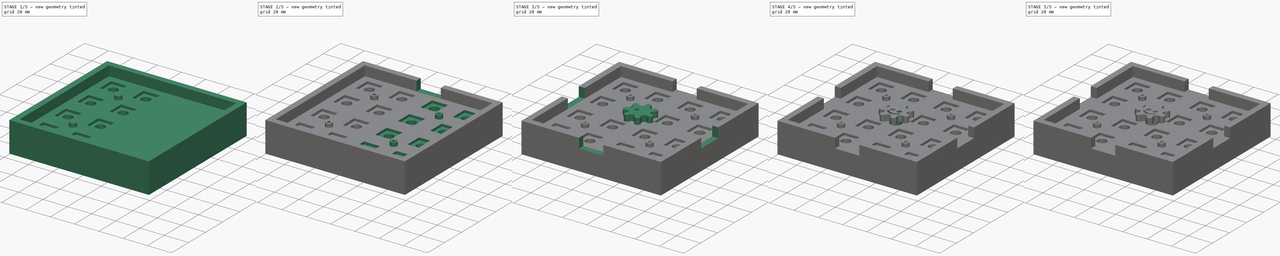
[diagram: build sequence overview — one tinted view per stage of 5, left to right]
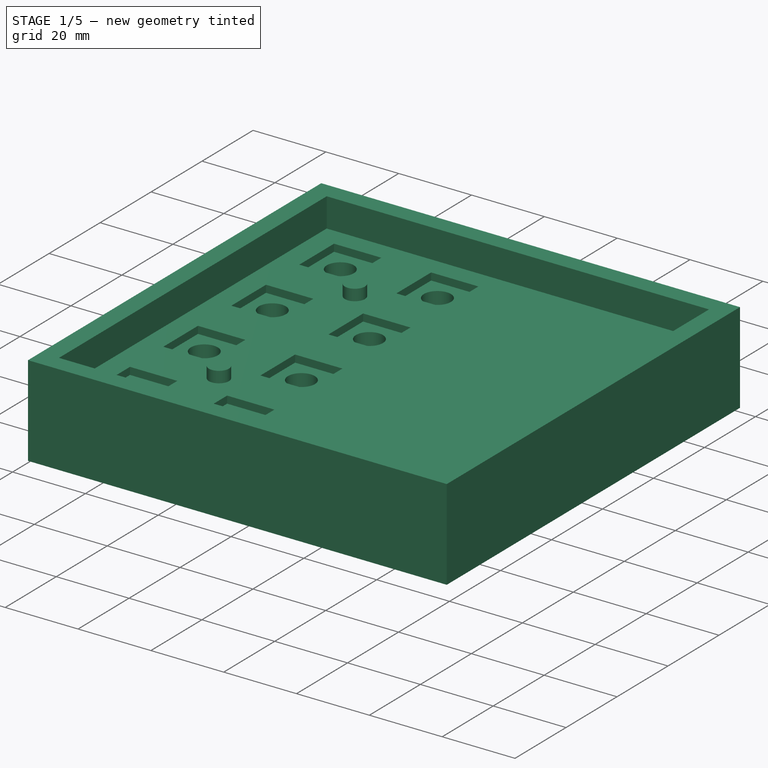
[diagram: stage 1 of 5 — iso view after this stage's code; geometry added in this stage tinted green]
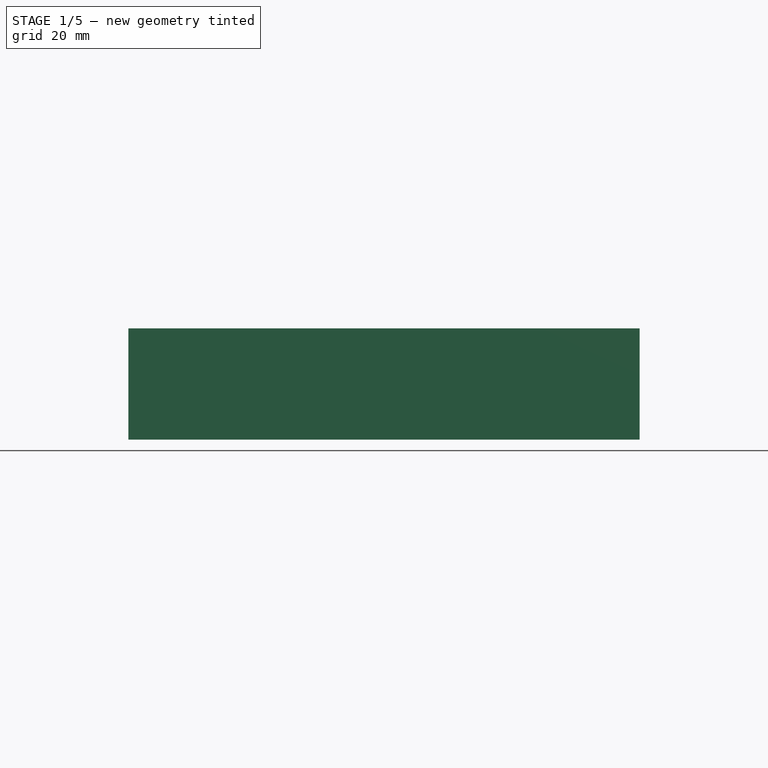
[diagram: stage 1 of 5 — front view after this stage's code; geometry added in this stage tinted green]
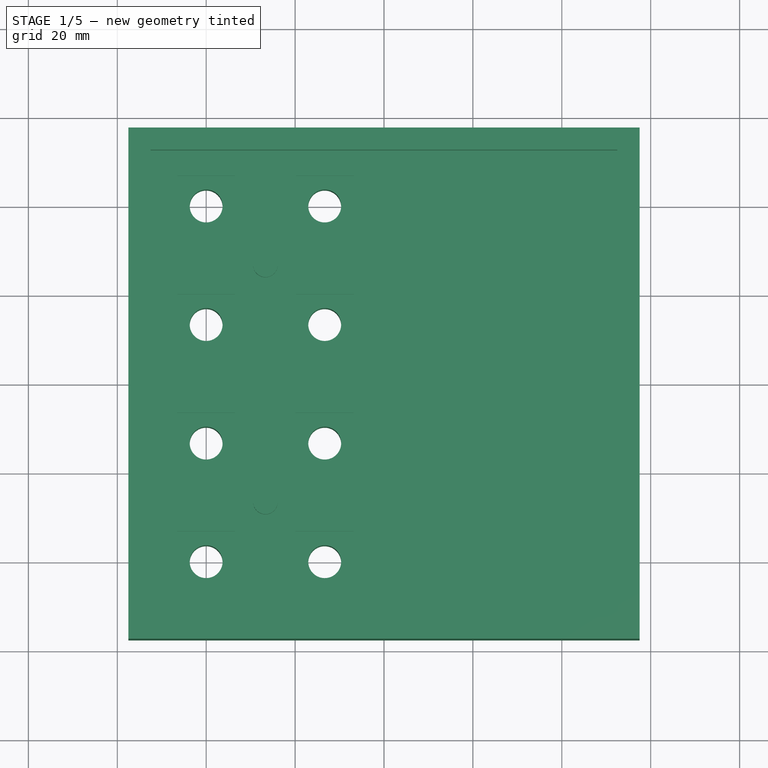
[diagram: stage 1 of 5 — top view after this stage's code; geometry added in this stage tinted green]
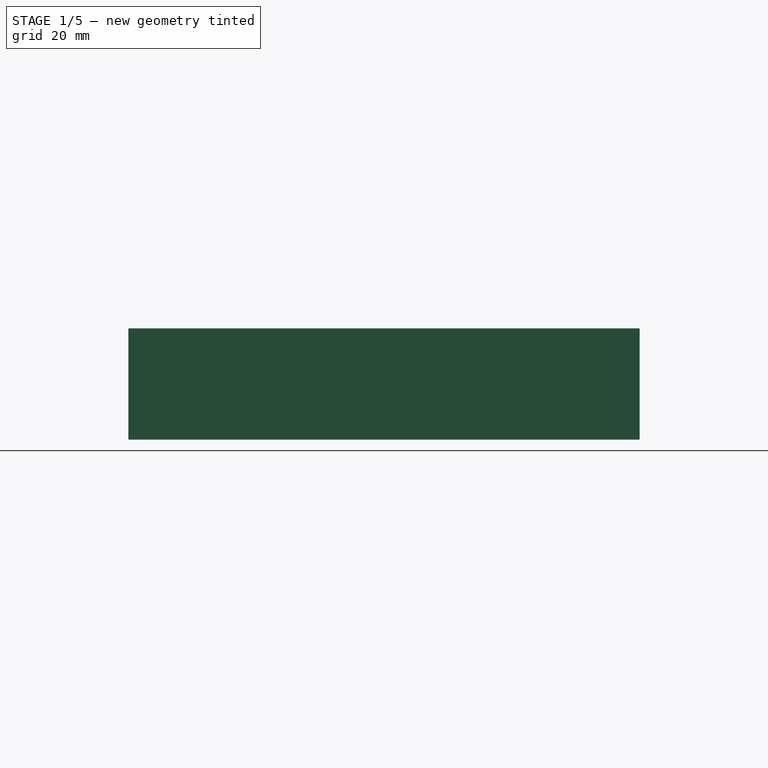
[diagram: stage 1 of 5 — right view after this stage's code; geometry added in this stage tinted green]
FCSTD DOCUMENT  (FreeCAD 0.21R33668 +26 (Git))
Label: EN16_solder_jig
License: All rights reserved
LicenseURL: https://en.wikipedia.org/wiki/All_rights_reserved
objects: Sketcher::SketchObject×16, PartDesign::Pocket×10, PartDesign::Pad×5, PartDesign::Mirrored×5, PartDesign::Plane×3, PartDesign::Body×3, PartDesign::Hole×1, PartDesign::Chamfer×1, PartDesign::PolarPattern×1
note: 62 computed .brp shape members not serialized (recipe doc carries the construction recipe); baked Part::Feature solids carry a one-line shape summary decoded from their .brp

FEATURE [Sketcher::SketchObject] Sketch
  FullyConstrained = true
  MapMode = 5
  Support = -> [XY_Plane]
  sketch-geometry (48):
    g0: LineSegment StartX=-46.51 StartY=46.81 StartZ=0 EndX=-46.51 EndY=33.21 EndZ=0
    g1: LineSegment StartX=-46.51 StartY=33.21 StartZ=0 EndX=-33.51 EndY=33.21 EndZ=0
    g2: LineSegment StartX=-33.51 StartY=33.21 StartZ=0 EndX=-33.51 EndY=46.81 EndZ=0
    g3: LineSegment StartX=-33.51 StartY=46.81 StartZ=0 EndX=-46.51 EndY=46.81 EndZ=0
    g4: GeomPoint X=-40.01 Y=40.01 Z=0
    g5: LineSegment StartX=-19.84 StartY=46.81 StartZ=0 EndX=-19.84 EndY=33.21 EndZ=0
    g6: LineSegment StartX=-19.84 StartY=33.21 StartZ=0 EndX=-6.84 EndY=33.21 EndZ=0
    g7: LineSegment StartX=-6.84 StartY=33.21 StartZ=0 EndX=-6.84 EndY=46.81 EndZ=0
    g8: LineSegment StartX=-6.84 StartY=46.81 StartZ=0 EndX=-19.84 EndY=46.81 EndZ=0
    g9: GeomPoint X=-13.34 Y=40.01 Z=0
    g10: LineSegment StartX=-46.51 StartY=20.14 StartZ=0 EndX=-46.51 EndY=6.54 EndZ=0
    g11: LineSegment StartX=-46.51 StartY=6.54 StartZ=0 EndX=-33.51 EndY=6.54 EndZ=0
    g12: LineSegment StartX=-33.51 StartY=6.54 StartZ=0 EndX=-33.51 EndY=20.14 EndZ=0
    g13: LineSegment StartX=-33.51 StartY=20.14 StartZ=0 EndX=-46.51 EndY=20.14 EndZ=0
    g14: GeomPoint X=-40.01 Y=13.34 Z=0
    g15: LineSegment StartX=-19.84 StartY=20.14 StartZ=0 EndX=-19.84 EndY=6.54 EndZ=0
    g16: LineSegment StartX=-19.84 StartY=6.54 StartZ=0 EndX=-6.84 EndY=6.54 EndZ=0
    g17: LineSegment StartX=-6.84 StartY=6.54 StartZ=0 EndX=-6.84 EndY=20.14 EndZ=0
    g18: LineSegment StartX=-6.84 StartY=20.14 StartZ=0 EndX=-19.84 EndY=20.14 EndZ=0
    g19: GeomPoint X=-13.34 Y=13.34 Z=0
    g20: LineSegment StartX=-46.51 StartY=-46.81 StartZ=0 EndX=-46.51 EndY=-33.21 EndZ=0
    g21: LineSegment StartX=-46.51 StartY=-33.21 StartZ=0 EndX=-33.51 EndY=-33.21 EndZ=0
    g22: LineSegment StartX=-33.51 StartY=-33.21 StartZ=0 EndX=-33.51 EndY=-46.81 EndZ=0
    g23: LineSegment StartX=-33.51 StartY=-46.81 StartZ=0 EndX=-46.51 EndY=-46.81 EndZ=0
    g24: GeomPoint X=-40.01 Y=-40.01 Z=0
    g25: LineSegment StartX=-19.84 StartY=-46.81 StartZ=0 EndX=-19.84 EndY=-33.21 EndZ=0
    g26: LineSegment StartX=-19.84 StartY=-33.21 StartZ=0 EndX=-6.84 EndY=-33.21 EndZ=0
    g27: LineSegment StartX=-6.84 StartY=-33.21 StartZ=0 EndX=-6.84 EndY=-46.81 EndZ=0
    g28: LineSegment StartX=-6.84 StartY=-46.81 StartZ=0 EndX=-19.84 EndY=-46.81 EndZ=0
    g29: GeomPoint X=-13.34 Y=-40.01 Z=0
    g30: LineSegment StartX=-46.51 StartY=-20.14 StartZ=0 EndX=-46.51 EndY=-6.54 EndZ=0
    g31: LineSegment StartX=-46.51 StartY=-6.54 StartZ=0 EndX=-33.51 EndY=-6.54 EndZ=0
    g32: LineSegment StartX=-33.51 StartY=-6.54 StartZ=0 EndX=-33.51 EndY=-20.14 EndZ=0
    g33: LineSegment StartX=-33.51 StartY=-20.14 StartZ=0 EndX=-46.51 EndY=-20.14 EndZ=0
    g34: GeomPoint X=-40.01 Y=-13.34 Z=0
    g35: LineSegment StartX=-19.84 StartY=-20.14 StartZ=0 EndX=-19.84 EndY=-6.54 EndZ=0
    g36: LineSegment StartX=-19.84 StartY=-6.54 StartZ=0 EndX=-6.84 EndY=-6.54 EndZ=0
    g37: LineSegment StartX=-6.84 StartY=-6.54 StartZ=0 EndX=-6.84 EndY=-20.14 EndZ=0
    g38: LineSegment StartX=-6.84 StartY=-20.14 StartZ=0 EndX=-19.84 EndY=-20.14 EndZ=0
    g39: GeomPoint X=-13.34 Y=-13.34 Z=0
    g40: LineSegment StartX=-40.01 StartY=40.01 StartZ=0 EndX=-13.34 EndY=40.01 EndZ=0
    g41: LineSegment StartX=-13.34 StartY=40.01 StartZ=0 EndX=-13.34 EndY=13.34 EndZ=0
    g42: LineSegment StartX=-13.34 StartY=13.34 StartZ=0 EndX=-13.34 EndY=0 EndZ=0
    g43: LineSegment StartX=-13.34 StartY=0 StartZ=0 EndX=-13.34 EndY=-13.34 EndZ=0
    g44: LineSegment StartX=-13.34 StartY=-13.34 StartZ=0 EndX=-13.34 EndY=-40.01 EndZ=0
    g45: LineSegment StartX=-13.34 StartY=-13.34 StartZ=0 EndX=-40.01 EndY=-13.34 EndZ=0
    g46: LineSegment StartX=-13.34 StartY=13.34 StartZ=0 EndX=0 EndY=13.34 EndZ=0
    g47: LineSegment StartX=-13.34 StartY=-13.34 StartZ=0 EndX=0 EndY=-13.34 EndZ=0
  constraints (123):
    c: Coincident(g0,g1)
    c: Coincident(g1,g2)
    c: Coincident(g2,g3)
    c: Coincident(g3,g0)
    c: Horizontal(g1)
    c: Horizontal(g3)
    c: Vertical(g0)
    c: Vertical(g2)
    c: Symmetric(g1,g0,g4)
    c: Coincident(g5,g6)
    c: Coincident(g6,g7)
    c: Coincident(g7,g8)
    c: Coincident(g8,g5)
    c: Horizontal(g6)
    c: Horizontal(g8)
    c: Vertical(g5)
    c: Vertical(g7)
    c: Symmetric(g6,g5,g9)
    c: Coincident(g10,g11)
    c: Coincident(g11,g12)
    c: Coincident(g12,g13)
    c: Coincident(g13,g10)
    c: Horizontal(g11)
    c: Horizontal(g13)
    c: Vertical(g10)
    c: Vertical(g12)
    c: Symmetric(g11,g10,g14)
    c: Coincident(g15,g16)
    c: Coincident(g16,g17)
    c: Coincident(g17,g18)
    c: Coincident(g18,g15)
    c: Horizontal(g16)
    c: Horizontal(g18)
    c: Vertical(g15)
    c: Vertical(g17)
    c: Symmetric(g16,g15,g19)
    c: Horizontal(g19,g14)
    c: Horizontal(g9,g4)
    c: Vertical(g9,g19)
    c: Vertical(g4,g14)
    c: Equal(g2,g7)
    c: Equal(g7,g17)
    c: Equal(g17,g12)
    c: Equal(g1,g13)
    c: Equal(g13,g6)
    c: Equal(g6,g18)
    c: DistanceX(g8,g8) = 13
    c: Coincident(g20,g21)
    c: Coincident(g21,g22)
    c: Coincident(g22,g23)
    c: Coincident(g23,g20)
    c: Horizontal(g21)
    c: Horizontal(g23)
    c: Vertical(g20)
    c: Vertical(g22)
    c: Symmetric(g21,g20,g24)
    c: Coincident(g25,g26)
    c: Coincident(g26,g27)
    c: Coincident(g27,g28)
    c: Coincident(g28,g25)
    c: Horizontal(g26)
    c: Horizontal(g28)
    c: Vertical(g25)
    c: Vertical(g27)
    c: Symmetric(g26,g25,g29)
    c: Coincident(g30,g31)
    c: Coincident(g31,g32)
    c: Coincident(g32,g33)
    c: Coincident(g33,g30)
    c: Horizontal(g31)
    c: Horizontal(g33)
    c: Vertical(g30)
    c: Vertical(g32)
    c: Symmetric(g31,g30,g34)
    c: Coincident(g35,g36)
    c: Coincident(g36,g37)
    c: Coincident(g37,g38)
    c: Coincident(g38,g35)
    c: Horizontal(g36)
    c: Horizontal(g38)
    c: Vertical(g35)
    c: Vertical(g37)
    c: Symmetric(g36,g35,g39)
    c: Equal(g22,g27)
    c: Equal(g27,g37)
    c: Equal(g37,g32)
    c: Equal(g21,g33)
    c: Equal(g33,g26)
    c: Equal(g26,g38)
    c: DistanceY(g7,g7) = 13.6
    c: Coincident(g40,g4)
    c: Coincident(g40,g9)
    c: Coincident(g41,g40)
    c: Coincident(g41,g19)
    c: Coincident(g42,g41)
    c: PointOnObject(g42,g-1)
    c: Vertical(g42)
    c: Coincident(g43,g42)
    c: Coincident(g43,g39)
    c: Vertical(g43)
    c: Coincident(g44,g43)
    c: Coincident(g44,g29)
    c: Vertical(g44)
    c: Coincident(g45,g43)
    c: Coincident(g45,g34)
    c: Horizontal(g45)
    c: DistanceY(g41,g41) = 26.67
    c: DistanceX(g40,g40) = 26.67
    c: DistanceY(g42,g42) = 13.34
    c: Coincident(g46,g41)
    c: PointOnObject(g46,g-2)
    c: Horizontal(g46)
    c: DistanceX(g46,g46) = 13.34
    c: Coincident(g47,g43)
    c: PointOnObject(g47,g-2)
    c: Horizontal(g47)
    c: Equal(g42,g43)
    c: Equal(g41,g44)
    c: Equal(g45,g40)
    c: Equal(g32,g12)
    c: Equal(g31,g11)
    c: Horizontal(g24,g44)
    c: Vertical(g24,g45)
FEATURE [Sketcher::SketchObject] Sketch001
  FullyConstrained = true
  MapMode = 5
  Support = -> [XY_Plane]
  sketch-geometry (5):
    g0: LineSegment StartX=-57.5 StartY=57.5 StartZ=0 EndX=-57.5 EndY=-57.5 EndZ=0
    g1: LineSegment StartX=-57.5 StartY=-57.5 StartZ=0 EndX=57.5 EndY=-57.5 EndZ=0
    g2: LineSegment StartX=57.5 StartY=-57.5 StartZ=0 EndX=57.5 EndY=57.5 EndZ=0
    g3: LineSegment StartX=57.5 StartY=57.5 StartZ=0 EndX=-57.5 EndY=57.5 EndZ=0
    g4: GeomPoint X=0 Y=0 Z=0
  constraints (12):
    c: Coincident(g0,g1)
    c: Coincident(g1,g2)
    c: Coincident(g2,g3)
    c: Coincident(g3,g0)
    c: Horizontal(g1)
    c: Horizontal(g3)
    c: Vertical(g0)
    c: Vertical(g2)
    c: Symmetric(g1,g0,g4)
    c: Coincident(g4,g-1)
    c: DistanceY(g2,g2) = 115
    c: Equal(g3,g2)
FEATURE [PartDesign::Pad] Pad
  Direction = (0,0,1)
  Length = 10
  Length2 = 15
  Midplane = true
  Profile = -> Sketch001
  ReferenceAxis = -> Sketch001 [N_Axis]
  Type = 4
FEATURE [PartDesign::Plane] DatumPlane
  AttachmentOffset = pos=(0,0,2) rot=(0,0,1;0rad)
  Length = 138
  MapMode = 5
  Placement = pos=(0,0,2) rot=(0,0,1;0rad)
  ResizeMode = 0
  Support = -> [XY_Plane]
  Width = 138
FEATURE [Sketcher::SketchObject] Sketch002
  FullyConstrained = true
  MapMode = 5
  Placement = pos=(0,0,2) rot=(0,0,1;0rad)
  Support = -> [DatumPlane]
  sketch-geometry (5):
    g0: LineSegment StartX=-52.5 StartY=-52.5 StartZ=0 EndX=-52.5 EndY=52.5 EndZ=0
    g1: LineSegment StartX=-52.5 StartY=52.5 StartZ=0 EndX=52.5 EndY=52.5 EndZ=0
    g2: LineSegment StartX=52.5 StartY=52.5 StartZ=0 EndX=52.5 EndY=-52.5 EndZ=0
    g3: LineSegment StartX=52.5 StartY=-52.5 StartZ=0 EndX=-52.5 EndY=-52.5 EndZ=0
    g4: GeomPoint X=0 Y=0 Z=0
  constraints (12):
    c: Coincident(g0,g1)
    c: Coincident(g1,g2)
    c: Coincident(g2,g3)
    c: Coincident(g3,g0)
    c: Horizontal(g1)
    c: Horizontal(g3)
    c: Vertical(g0)
    c: Vertical(g2)
    c: Symmetric(g1,g0,g4)
    c: Coincident(g4,g-1)
    c: DistanceX(g1,g1) = 105
    c: Equal(g1,g2)
FEATURE [PartDesign::Pocket] Pocket
  BaseFeature = -> Pad
  Direction = (0,0,-1)
  Length = 5
  Length2 = 5
  Profile = -> Sketch002
  ReferenceAxis = -> Sketch002 [N_Axis]
  Reversed = true
  Type = 1
FEATURE [PartDesign::Pocket] Pocket001
  BaseFeature = -> Pocket
  Direction = (0,0,-1)
  Length = 2.5
  Length2 = 5
  Profile = -> Sketch
  ReferenceAxis = -> Sketch [N_Axis]
  Reversed = true
  Type = 0
FEATURE [Sketcher::SketchObject] Sketch003
  FullyConstrained = true
  MapMode = 5
  Placement = pos=(0,0,2) rot=(0,0,1;0rad)
  Support = -> [DatumPlane]
  sketch-geometry (56):
    g0: LineSegment StartX=-46.31 StartY=46.61 StartZ=0 EndX=-46.31 EndY=33.41 EndZ=0
    g1: LineSegment StartX=-46.31 StartY=33.41 StartZ=0 EndX=-33.71 EndY=33.41 EndZ=0
    g2: LineSegment StartX=-33.71 StartY=33.41 StartZ=0 EndX=-33.71 EndY=46.61 EndZ=0
    g3: LineSegment StartX=-33.71 StartY=46.61 StartZ=0 EndX=-46.31 EndY=46.61 EndZ=0
    g4: GeomPoint X=-40.01 Y=40.01 Z=0
    g5: LineSegment StartX=-19.64 StartY=46.61 StartZ=0 EndX=-19.64 EndY=33.41 EndZ=0
    g6: LineSegment StartX=-19.64 StartY=33.41 StartZ=0 EndX=-7.04 EndY=33.41 EndZ=0
    g7: LineSegment StartX=-7.04 StartY=33.41 StartZ=0 EndX=-7.04 EndY=46.61 EndZ=0
    g8: LineSegment StartX=-7.04 StartY=46.61 StartZ=0 EndX=-19.64 EndY=46.61 EndZ=0
    g9: GeomPoint X=-13.34 Y=40.01 Z=0
    g10: LineSegment StartX=-46.31 StartY=19.94 StartZ=0 EndX=-46.31 EndY=6.74 EndZ=0
    g11: LineSegment StartX=-46.31 StartY=6.74 StartZ=0 EndX=-33.71 EndY=6.74 EndZ=0
    g12: LineSegment StartX=-33.71 StartY=6.74 StartZ=0 EndX=-33.71 EndY=19.94 EndZ=0
    g13: LineSegment StartX=-33.71 StartY=19.94 StartZ=0 EndX=-46.31 EndY=19.94 EndZ=0
    g14: GeomPoint X=-40.01 Y=13.34 Z=0
    g15: LineSegment StartX=-19.64 StartY=19.94 StartZ=0 EndX=-19.64 EndY=6.74 EndZ=0
    g16: LineSegment StartX=-19.64 StartY=6.74 StartZ=0 EndX=-7.04 EndY=6.74 EndZ=0
    g17: LineSegment StartX=-7.04 StartY=6.74 StartZ=0 EndX=-7.04 EndY=19.94 EndZ=0
    g18: LineSegment StartX=-7.04 StartY=19.94 StartZ=0 EndX=-19.64 EndY=19.94 EndZ=0
    g19: GeomPoint X=-13.34 Y=13.34 Z=0
    g20: LineSegment StartX=-46.31 StartY=-46.61 StartZ=0 EndX=-46.31 EndY=-33.41 EndZ=0
    g21: LineSegment StartX=-46.31 StartY=-33.41 StartZ=0 EndX=-33.71 EndY=-33.41 EndZ=0
    g22: LineSegment StartX=-33.71 StartY=-33.41 StartZ=0 EndX=-33.71 EndY=-46.61 EndZ=0
    g23: LineSegment StartX=-33.71 StartY=-46.61 StartZ=0 EndX=-46.31 EndY=-46.61 EndZ=0
    g24: GeomPoint X=-40.01 Y=-40.01 Z=0
    g25: LineSegment StartX=-19.64 StartY=-46.61 StartZ=0 EndX=-19.64 EndY=-33.41 EndZ=0
    g26: LineSegment StartX=-19.64 StartY=-33.41 StartZ=0 EndX=-7.04 EndY=-33.41 EndZ=0
    g27: LineSegment StartX=-7.04 StartY=-33.41 StartZ=0 EndX=-7.04 EndY=-46.61 EndZ=0
    g28: LineSegment StartX=-7.04 StartY=-46.61 StartZ=0 EndX=-19.64 EndY=-46.61 EndZ=0
    g29: GeomPoint X=-13.34 Y=-40.01 Z=0
    g30: LineSegment StartX=-46.31 StartY=-19.94 StartZ=0 EndX=-46.31 EndY=-6.74 EndZ=0
    g31: LineSegment StartX=-46.31 StartY=-6.74 StartZ=0 EndX=-33.71 EndY=-6.74 EndZ=0
    g32: LineSegment StartX=-33.71 StartY=-6.74 StartZ=0 EndX=-33.71 EndY=-19.94 EndZ=0
    g33: LineSegment StartX=-33.71 StartY=-19.94 StartZ=0 EndX=-46.31 EndY=-19.94 EndZ=0
    g34: GeomPoint X=-40.01 Y=-13.34 Z=0
    g35: LineSegment StartX=-19.64 StartY=-19.94 StartZ=0 EndX=-19.64 EndY=-6.74 EndZ=0
    g36: LineSegment StartX=-19.64 StartY=-6.74 StartZ=0 EndX=-7.04 EndY=-6.74 EndZ=0
    g37: LineSegment StartX=-7.04 StartY=-6.74 StartZ=0 EndX=-7.04 EndY=-19.94 EndZ=0
    g38: LineSegment StartX=-7.04 StartY=-19.94 StartZ=0 EndX=-19.64 EndY=-19.94 EndZ=0
    g39: GeomPoint X=-13.34 Y=-13.34 Z=0
    g40: LineSegment StartX=-40.01 StartY=40.01 StartZ=0 EndX=-13.34 EndY=40.01 EndZ=0
    g41: LineSegment StartX=-13.34 StartY=40.01 StartZ=0 EndX=-13.34 EndY=13.34 EndZ=0
    g42: LineSegment StartX=-13.34 StartY=13.34 StartZ=0 EndX=-13.34 EndY=0 EndZ=0
    g43: LineSegment StartX=-13.34 StartY=0 StartZ=0 EndX=-13.34 EndY=-13.34 EndZ=0
    g44: LineSegment StartX=-13.34 StartY=-13.34 StartZ=0 EndX=-13.34 EndY=-40.01 EndZ=0
    g45: LineSegment StartX=-13.34 StartY=-13.34 StartZ=0 EndX=-40.01 EndY=-13.34 EndZ=0
    g46: LineSegment StartX=-13.34 StartY=13.34 StartZ=0 EndX=0 EndY=13.34 EndZ=0
    g47: LineSegment StartX=-13.34 StartY=-13.34 StartZ=0 EndX=0 EndY=-13.34 EndZ=0
    g48: Circle CenterX=-40.01 CenterY=40.01 CenterZ=0 NormalX=0 NormalY=0 NormalZ=1 AngleXU=0 Radius=3.7
    g49: Circle CenterX=-40.01 CenterY=13.34 CenterZ=0 NormalX=0 NormalY=0 NormalZ=1 AngleXU=0 Radius=3.7
    g50: Circle CenterX=-40.01 CenterY=-13.34 CenterZ=0 NormalX=0 NormalY=0 NormalZ=1 AngleXU=0 Radius=3.7
    g51: Circle CenterX=-13.34 CenterY=-13.34 CenterZ=0 NormalX=0 NormalY=0 NormalZ=1 AngleXU=0 Radius=3.7
    g52: Circle CenterX=-13.34 CenterY=-40.01 CenterZ=0 NormalX=0 NormalY=0 NormalZ=1 AngleXU=0 Radius=3.7
    g53: Circle CenterX=-40.01 CenterY=-40.01 CenterZ=0 NormalX=0 NormalY=0 NormalZ=1 AngleXU=0 Radius=3.7
    g54: Circle CenterX=-13.34 CenterY=13.34 CenterZ=0 NormalX=0 NormalY=0 NormalZ=1 AngleXU=0 Radius=3.7
    g55: Circle CenterX=-13.34 CenterY=40.01 CenterZ=0 NormalX=0 NormalY=0 NormalZ=1 AngleXU=0 Radius=3.7
  constraints (139):
    c: Coincident(g0,g1)
    c: Coincident(g1,g2)
    c: Coincident(g2,g3)
    c: Coincident(g3,g0)
    c: Horizontal(g1)
    c: Horizontal(g3)
    c: Vertical(g0)
    c: Vertical(g2)
    c: Symmetric(g1,g0,g4)
    c: Coincident(g5,g6)
    c: Coincident(g6,g7)
    c: Coincident(g7,g8)
    c: Coincident(g8,g5)
    c: Horizontal(g6)
    c: Horizontal(g8)
    c: Vertical(g5)
    c: Vertical(g7)
    c: Symmetric(g6,g5,g9)
    c: Coincident(g10,g11)
    c: Coincident(g11,g12)
    c: Coincident(g12,g13)
    c: Coincident(g13,g10)
    c: Horizontal(g11)
    c: Horizontal(g13)
    c: Vertical(g10)
    c: Vertical(g12)
    c: Symmetric(g11,g10,g14)
    c: Coincident(g15,g16)
    c: Coincident(g16,g17)
    c: Coincident(g17,g18)
    c: Coincident(g18,g15)
    c: Horizontal(g16)
    c: Horizontal(g18)
    c: Vertical(g15)
    c: Vertical(g17)
    c: Symmetric(g16,g15,g19)
    c: Horizontal(g19,g14)
    c: Horizontal(g9,g4)
    c: Vertical(g9,g19)
    c: Vertical(g4,g14)
    c: Equal(g2,g7)
    c: Equal(g7,g17)
    c: Equal(g17,g12)
    c: Equal(g1,g13)
    c: Equal(g13,g6)
    c: Equal(g6,g18)
    c: DistanceX(g8,g8) = 12.6
    c: Coincident(g20,g21)
    c: Coincident(g21,g22)
    c: Coincident(g22,g23)
    c: Coincident(g23,g20)
    c: Horizontal(g21)
    c: Horizontal(g23)
    c: Vertical(g20)
    c: Vertical(g22)
    c: Symmetric(g21,g20,g24)
    c: Coincident(g25,g26)
    c: Coincident(g26,g27)
    c: Coincident(g27,g28)
    c: Coincident(g28,g25)
    c: Horizontal(g26)
    c: Horizontal(g28)
    c: Vertical(g25)
    c: Vertical(g27)
    c: Symmetric(g26,g25,g29)
    c: Coincident(g30,g31)
    c: Coincident(g31,g32)
    c: Coincident(g32,g33)
    c: Coincident(g33,g30)
    c: Horizontal(g31)
    c: Horizontal(g33)
    c: Vertical(g30)
    c: Vertical(g32)
    c: Symmetric(g31,g30,g34)
    c: Coincident(g35,g36)
    c: Coincident(g36,g37)
    c: Coincident(g37,g38)
    c: Coincident(g38,g35)
    c: Horizontal(g36)
    c: Horizontal(g38)
    c: Vertical(g35)
    c: Vertical(g37)
    c: Symmetric(g36,g35,g39)
    c: Equal(g22,g27)
    c: Equal(g27,g37)
    c: Equal(g37,g32)
    c: Equal(g21,g33)
    c: Equal(g33,g26)
    c: Equal(g26,g38)
    c: DistanceY(g7,g7) = 13.2
    c: Coincident(g40,g4)
    c: Coincident(g40,g9)
    c: Coincident(g41,g40)
    c: Coincident(g41,g19)
    c: Coincident(g42,g41)
    c: PointOnObject(g42,g-1)
    c: Vertical(g42)
    c: Coincident(g43,g42)
    c: Coincident(g43,g39)
    c: Vertical(g43)
    c: Coincident(g44,g43)
    c: Coincident(g44,g29)
    c: Vertical(g44)
    c: Coincident(g45,g43)
    c: Coincident(g45,g34)
    c: Horizontal(g45)
    c: DistanceY(g41,g41) = 26.67
    c: DistanceX(g40,g40) = 26.67
    c: DistanceY(g42,g42) = 13.34
    c: Coincident(g46,g41)
    c: PointOnObject(g46,g-2)
    c: Horizontal(g46)
    c: DistanceX(g46,g46) = 13.34
    c: Coincident(g47,g43)
    c: PointOnObject(g47,g-2)
    c: Horizontal(g47)
    c: Equal(g42,g43)
    c: Equal(g41,g44)
    c: Equal(g45,g40)
    c: Equal(g32,g12)
    c: Equal(g31,g11)
    c: Horizontal(g24,g44)
    c: Vertical(g24,g45)
    c: Coincident(g48,g4)
    c: Coincident(g49,g14)
    c: Coincident(g50,g34)
    c: Coincident(g51,g39)
    c: Coincident(g52,g29)
    c: Coincident(g53,g24)
    c: Coincident(g54,g19)
    c: Coincident(g55,g9)
    c: Equal(g48,g55)
    c: Equal(g55,g54)
    c: Equal(g54,g49)
    c: Equal(g49,g51)
    c: Equal(g51,g50)
    c: Equal(g50,g53)
    c: Equal(g53,g52)
    c: Diameter(g48) = 7.4
FEATURE [PartDesign::Pocket] Pocket002
  BaseFeature = -> Pocket001
  Direction = (0,0,-1)
  Length = 5
  Length2 = 5
  Profile = -> Sketch003
  ReferenceAxis = -> Sketch003 [N_Axis]
  Type = 1
FEATURE [Sketcher::SketchObject] Sketch004
  FullyConstrained = true
  MapMode = 5
  Placement = pos=(0,0,2) rot=(0,0,1;0rad)
  Support = -> [DatumPlane]
  sketch-geometry (2):
    g0: Circle CenterX=-26.67 CenterY=26.67 CenterZ=0 NormalX=0 NormalY=0 NormalZ=1 AngleXU=0 Radius=2.75
    g1: Circle CenterX=-26.67 CenterY=-26.67 CenterZ=0 NormalX=0 NormalY=0 NormalZ=1 AngleXU=0 Radius=2.75
  constraints (5):
    c: DistanceY(g1,g0) = 53.34
    c: Equal(g0,g1)
    c: Diameter(g0) = 5.5
    c: Symmetric(g0,g1,g-1)
    c: DistanceX(g0,g-1) = 26.67
FEATURE [PartDesign::Pad] Pad001
  BaseFeature = -> Pocket002
  Direction = (0,0,1)
  Length = 3.1
  Length2 = 10
  Profile = -> Sketch004
  ReferenceAxis = -> Sketch004 [N_Axis]
  Type = 0
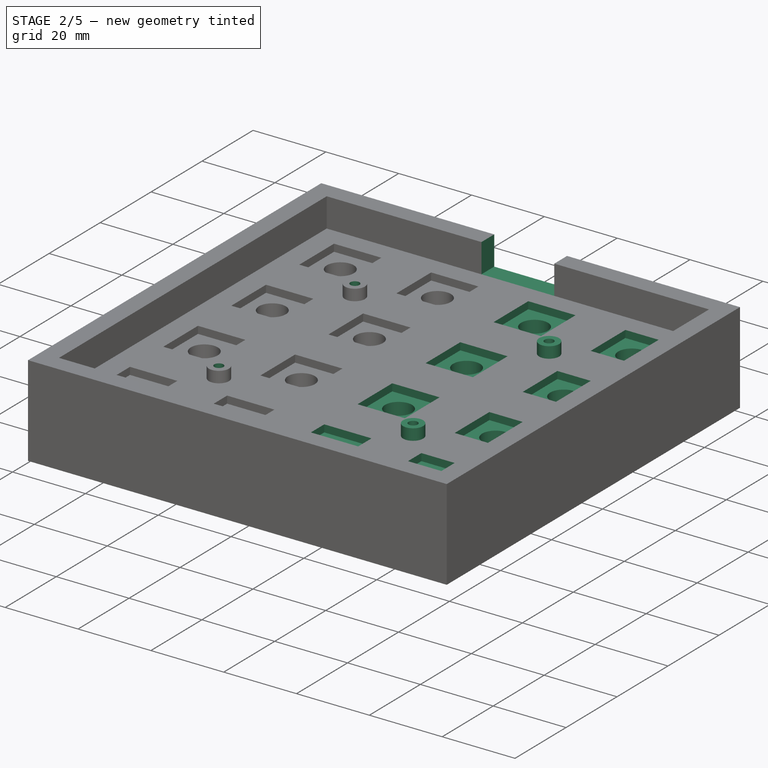
[diagram: stage 2 of 5 — iso view after this stage's code; geometry added in this stage tinted green]
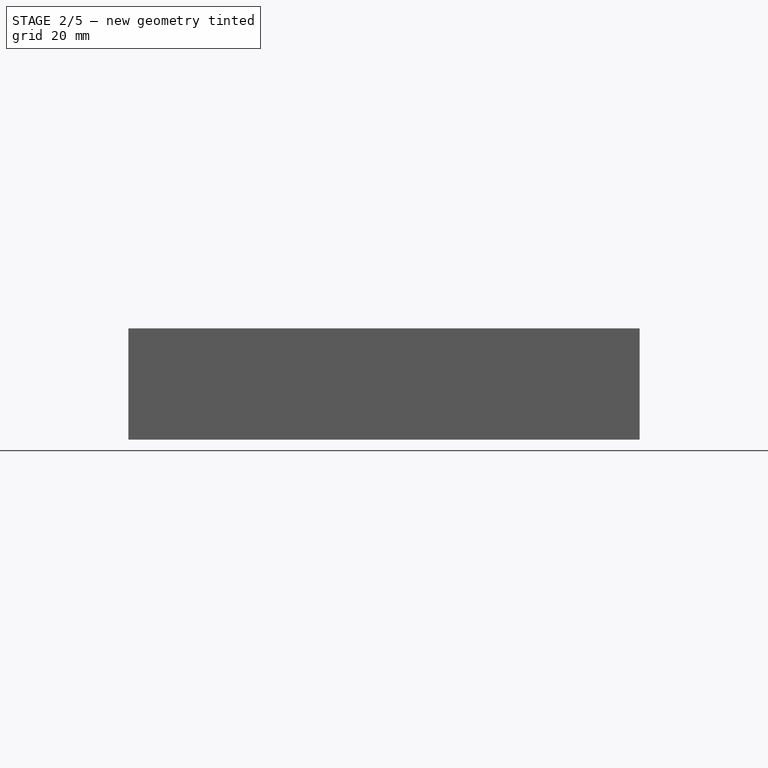
[diagram: stage 2 of 5 — front view after this stage's code; geometry added in this stage tinted green]
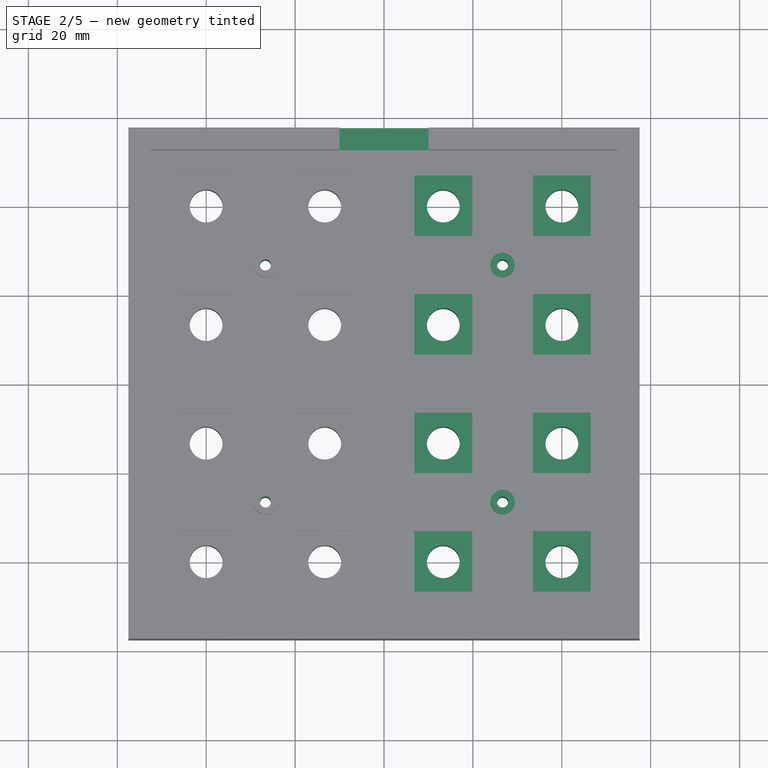
[diagram: stage 2 of 5 — top view after this stage's code; geometry added in this stage tinted green]
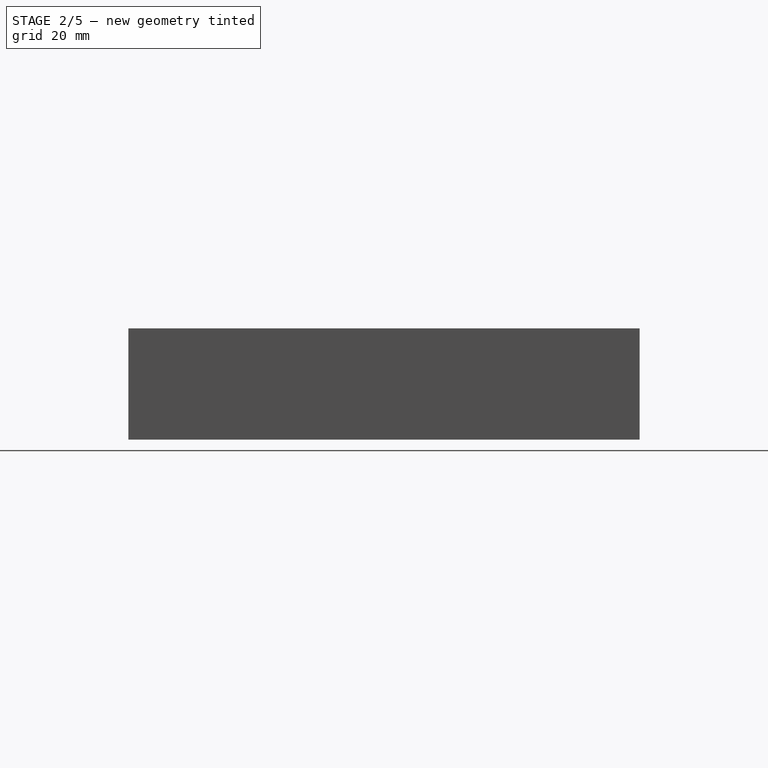
[diagram: stage 2 of 5 — right view after this stage's code; geometry added in this stage tinted green]
FEATURE [PartDesign::Mirrored] Mirrored
  BaseFeature = -> Pad001
  MirrorPlane = -> Sketch [V_Axis]
  Originals = -> [Pocket001,Pocket002,Pad001]
FEATURE [PartDesign::Pocket] Pocket003
  BaseFeature = -> Mirrored
  Direction = (0,0,-1)
  Length = 5
  Length2 = 5
  Midplane = true
  Profile = -> Sketch005
  ReferenceAxis = -> Sketch005 [N_Axis]
  Type = 1
FEATURE [PartDesign::Mirrored] Mirrored001
  BaseFeature = -> Pocket003
  MirrorPlane = -> Sketch005 [V_Axis]
  Originals = -> [Pocket003]
FEATURE [PartDesign::Body] Body002
  Group = -> [DatumPlane001,Sketch011,Pad004,Mirrored003,Sketch012,Pocket006,DatumPlane002,Sketch013,Pocket007,Mirrored004,Sketch014,Pocket009]
  Origin = -> Origin002
  Tip = -> Pocket009
FEATURE [Sketcher::SketchObject] Sketch015
  FullyConstrained = true
  MapMode = 5
  Placement = pos=(0,0,2) rot=(0,0,1;0rad)
  Support = -> [DatumPlane]
  sketch-geometry (5):
    g0: LineSegment StartX=-10 StartY=57.5 StartZ=0 EndX=-10 EndY=52.5 EndZ=0
    g1: LineSegment StartX=-10 StartY=52.5 StartZ=0 EndX=10 EndY=52.5 EndZ=0
    g2: LineSegment StartX=10 StartY=52.5 StartZ=0 EndX=10 EndY=57.5 EndZ=0
    g3: LineSegment StartX=10 StartY=57.5 StartZ=0 EndX=-10 EndY=57.5 EndZ=0
    g4: GeomPoint X=0 Y=55 Z=0
  constraints (13):
    c: Coincident(g0,g1)
    c: Coincident(g1,g2)
    c: Coincident(g2,g3)
    c: Coincident(g3,g0)
    c: Horizontal(g1)
    c: Horizontal(g3)
    c: Vertical(g0)
    c: Vertical(g2)
    c: Symmetric(g1,g0,g4)
    c: PointOnObject(g4,g-2)
    c: DistanceY(g-1,g2) = 57.5
    c: DistanceY(g2,g2) = 5
    c: DistanceX(g3,g3) = 20
FEATURE [PartDesign::Pocket] Pocket010
  BaseFeature = -> Mirrored001
  Direction = (0,0,-1)
  Length = 5
  Length2 = 5
  Profile = -> Sketch015
  ReferenceAxis = -> Sketch015 [N_Axis]
  Reversed = true
  Type = 1
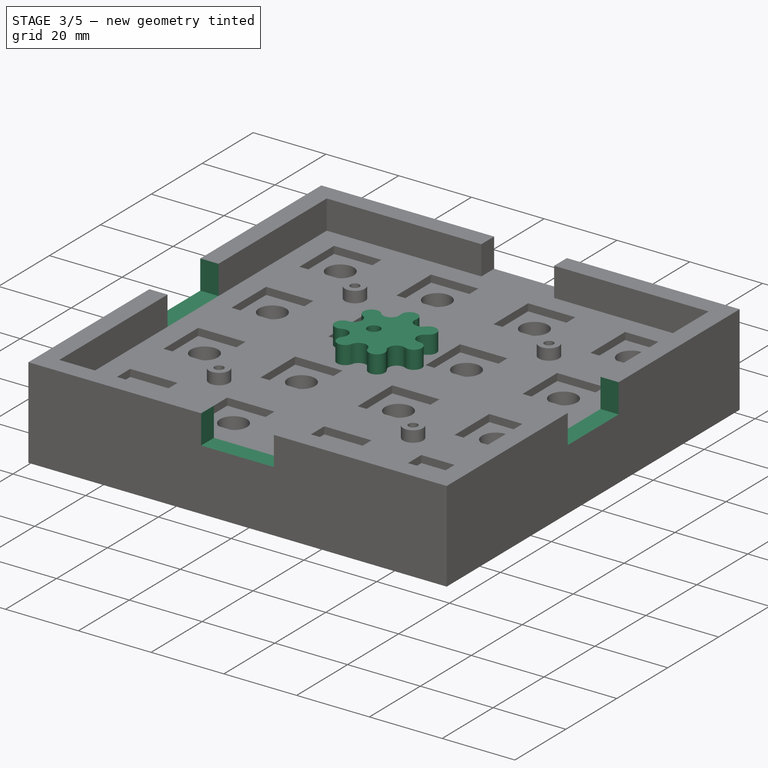
[diagram: stage 3 of 5 — iso view after this stage's code; geometry added in this stage tinted green]
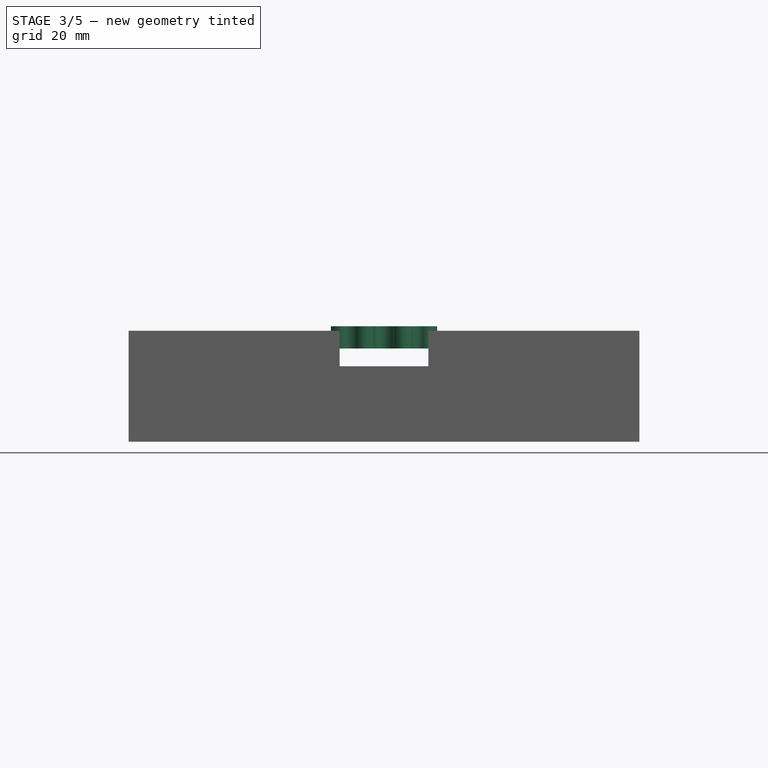
[diagram: stage 3 of 5 — front view after this stage's code; geometry added in this stage tinted green]
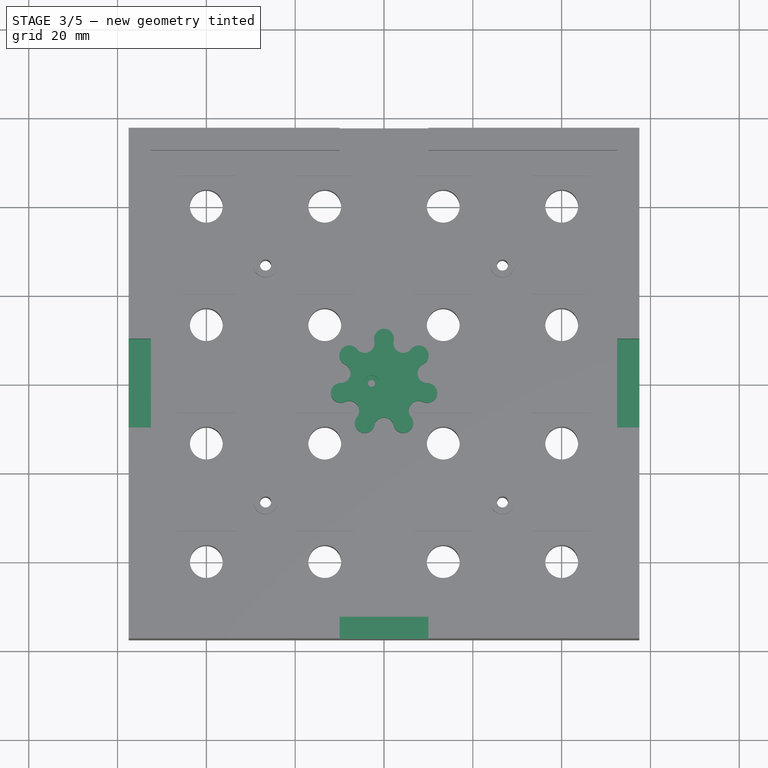
[diagram: stage 3 of 5 — top view after this stage's code; geometry added in this stage tinted green]
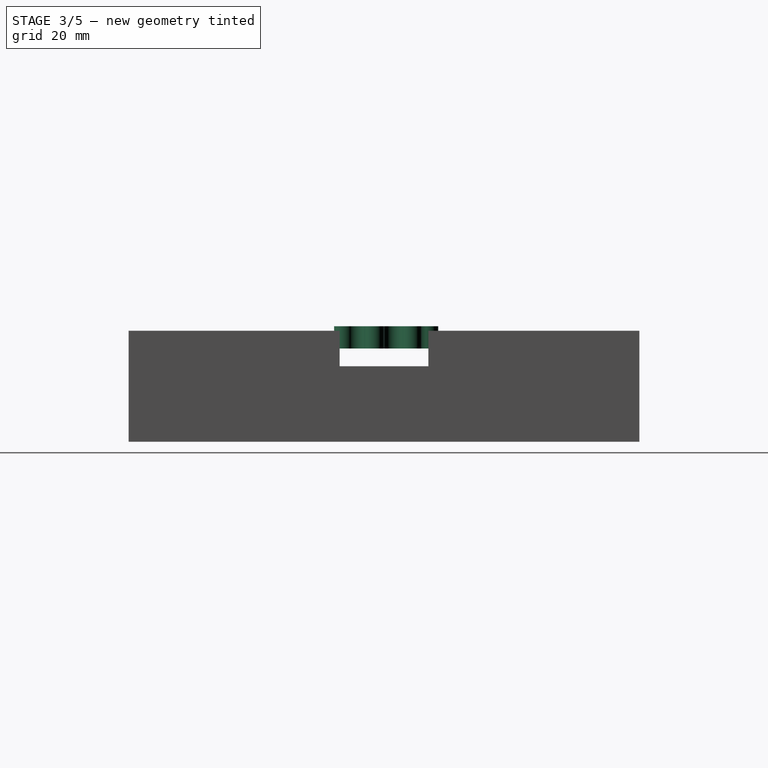
[diagram: stage 3 of 5 — right view after this stage's code; geometry added in this stage tinted green]
FEATURE [Sketcher::SketchObject] Sketch005
  FullyConstrained = true
  MapMode = 5
  Support = -> [XY_Plane]
  sketch-geometry (2):
    g0: Circle CenterX=-26.67 CenterY=26.67 CenterZ=0 NormalX=0 NormalY=0 NormalZ=1 AngleXU=0 Radius=1.25
    g1: Circle CenterX=-26.67 CenterY=-26.67 CenterZ=0 NormalX=0 NormalY=0 NormalZ=1 AngleXU=0 Radius=1.25
  constraints (5):
    c: Equal(g0,g1)
    c: DistanceX(g0,g-1) = 26.67
    c: DistanceY(g1,g0) = 53.34
    c: Symmetric(g1,g0,g-1)
    c: Diameter(g0) = 2.5
FEATURE [PartDesign::Plane] DatumPlane001
  AttachmentOffset = pos=(0,0,6) rot=(0,0,1;0rad)
  Length = 60
  MapMode = 5
  Placement = pos=(0,0,6) rot=(0,0,1;0rad)
  ResizeMode = 0
  Support = -> [XY_Plane002]
  Width = 60
FEATURE [Sketcher::SketchObject] Sketch011
  FullyConstrained = true
  MapMode = 5
  Placement = pos=(0,0,6) rot=(0,0,1;0rad)
  Support = -> [DatumPlane001]
  sketch-geometry (10):
    g0: Circle CenterX=0 CenterY=0 CenterZ=0 NormalX=0 NormalY=0 NormalZ=1 AngleXU=0 Radius=10
    g1: ArcOfCircle CenterX=0 CenterY=10 CenterZ=0 NormalX=0 NormalY=0 NormalZ=1 AngleXU=0 Radius=2.22521 StartAngle=1.5708 EndAngle=3.36599
    g2: ArcOfCircle CenterX=-9.74928 CenterY=2.22521 CenterZ=0 NormalX=0 NormalY=0 NormalZ=1 AngleXU=0 Radius=2.22521 StartAngle=4.71239 EndAngle=7.40518
    g3: ArcOfCircle CenterX=-7.81831 CenterY=6.2349 CenterZ=0 NormalX=0 NormalY=0 NormalZ=1 AngleXU=0 Radius=2.22521 StartAngle=0.673198 EndAngle=4.26359
    g4: ArcOfCircle CenterX=-4.33884 CenterY=9.00969 CenterZ=0 NormalX=0 NormalY=0 NormalZ=1 AngleXU=0 Radius=2.22521 StartAngle=3.81479 EndAngle=6.50758
    g5: LineSegment StartX=1e-16 StartY=12.2252 StartZ=0 EndX=1e-16 EndY=-7.77479 EndZ=0
    g6: ArcOfCircle CenterX=-9.74928 CenterY=-2.22521 CenterZ=0 NormalX=0 NormalY=0 NormalZ=1 AngleXU=0 Radius=2.22521 StartAngle=1.5708 EndAngle=5.16119
    g7: ArcOfCircle CenterX=-7.81831 CenterY=-6.2349 CenterZ=0 NormalX=0 NormalY=0 NormalZ=1 AngleXU=0 Radius=2.22521 StartAngle=5.60999 EndAngle=8.30278
    g8: ArcOfCircle CenterX=-4.33884 CenterY=-9.00969 CenterZ=0 NormalX=0 NormalY=0 NormalZ=1 AngleXU=0 Radius=2.22521 StartAngle=2.46839 EndAngle=6.05879
    g9: ArcOfCircle CenterX=0 CenterY=-10 CenterZ=0 NormalX=0 NormalY=0 NormalZ=1 AngleXU=0 Radius=2.22521 StartAngle=1.5708 EndAngle=2.91719
  constraints (30):
    c: Coincident(g0,g-1)
    c: PointOnObject(g1,g0)
    c: PointOnObject(g2,g0)
    c: PointOnObject(g3,g0)
    c: PointOnObject(g4,g0)
    c: Diameter(g0) = 20
    c: Tangent(g2,g-1)
    c: Equal(g2,g3)
    c: Equal(g3,g4)
    c: Equal(g4,g1)
    c: Tangent(g4,g1) = 1.5708
    c: Tangent(g4,g3) = 1.5708
    c: Tangent(g2,g3) = 1.5708
    c: Vertical(g5)
    c: PointOnObject(g5,g-2)
    c: PointOnObject(g1,g-2)
    c: Coincident(g1,g5)
    c: PointOnObject(g6,g0)
    c: PointOnObject(g7,g0)
    c: PointOnObject(g8,g0)
    c: PointOnObject(g9,g0)
    c: PointOnObject(g9,g-2)
    c: Equal(g9,g8)
    c: Equal(g8,g7)
    c: Equal(g7,g6)
    c: Tangent(g2,g6) = 1.5708
    c: Tangent(g7,g6) = 1.5708
    c: Tangent(g7,g8) = 1.5708
    c: Tangent(g9,g8) = 1.5708
    c: Coincident(g9,g5)
FEATURE [PartDesign::Pad] Pad004
  Direction = (0,0,1)
  Length = 5
  Length2 = 10
  Placement = pos=(0,0,6) rot=(0,0,1;0rad)
  Profile = -> Sketch011
  ReferenceAxis = -> Sketch011 [N_Axis]
  Type = 0
FEATURE [PartDesign::Mirrored] Mirrored003
  BaseFeature = -> Pad004
  MirrorPlane = -> Sketch011 [V_Axis]
  Originals = -> [Pad004]
  Placement = pos=(0,0,6) rot=(0,0,1;0rad)
FEATURE [Sketcher::SketchObject] Sketch012
  FullyConstrained = true
  MapMode = 5
  Placement = pos=(0,0,6) rot=(0,0,1;0rad)
  Support = -> [DatumPlane001]
  sketch-geometry (1):
    g0: Circle CenterX=-2.8 CenterY=0 CenterZ=0 NormalX=0 NormalY=0 NormalZ=1 AngleXU=0 Radius=0.8
  constraints (3):
    c: PointOnObject(g0,g-1)
    c: DistanceX(g0,g-1) = 2.8
    c: Diameter(g0) = 1.6
FEATURE [PartDesign::Pocket] Pocket006
  BaseFeature = -> Mirrored003
  Direction = (0,0,-1)
  Length = 5
  Length2 = 5
  Midplane = true
  Placement = pos=(0,0,6) rot=(0,0,1;0rad)
  Profile = -> Sketch012
  ReferenceAxis = -> Sketch012 [N_Axis]
  Type = 1
FEATURE [PartDesign::Plane] DatumPlane002
  AttachmentOffset = pos=(0,0,8) rot=(0,0,1;0rad)
  Length = 60
  MapMode = 5
  Placement = pos=(0,0,8) rot=(0,0,1;0rad)
  ResizeMode = 0
  Support = -> [XY_Plane002]
  Width = 60
FEATURE [Sketcher::SketchObject] Sketch013
  FullyConstrained = true
  MapMode = 5
  Placement = pos=(0,0,8) rot=(0,0,1;0rad)
  Support = -> [DatumPlane002]
  sketch-geometry (1):
    g0: Circle CenterX=-2.8 CenterY=0 CenterZ=0 NormalX=0 NormalY=0 NormalZ=1 AngleXU=0 Radius=1.75
  constraints (3):
    c: PointOnObject(g0,g-1)
    c: DistanceX(g0,g-1) = 2.8
    c: Diameter(g0) = 3.5
FEATURE [PartDesign::Pocket] Pocket007
  BaseFeature = -> Pocket006
  Direction = (0,0,-1)
  Length = 4
  Length2 = 5
  Placement = pos=(0,0,6) rot=(0,0,1;0rad)
  Profile = -> Sketch013
  ReferenceAxis = -> Sketch013 [N_Axis]
  Reversed = true
  Type = 1
FEATURE [PartDesign::PolarPattern] PolarPattern
  Angle = 360
  Axis = -> Sketch015 [N_Axis]
  BaseFeature = -> Pocket010
  Occurrences = 4
  Originals = -> [Pocket010]
FEATURE [PartDesign::Body] Body
  Group = -> [DatumPlane,Sketch001,Pad,Sketch002,Pocket,Sketch,Pocket001,Sketch003,Pocket002,Sketch004,Pad001,Mirrored,Sketch005,Pocket003,Mirrored001,Sketch015,Pocket010,PolarPattern]
  Origin = -> Origin
  Tip = -> PolarPattern
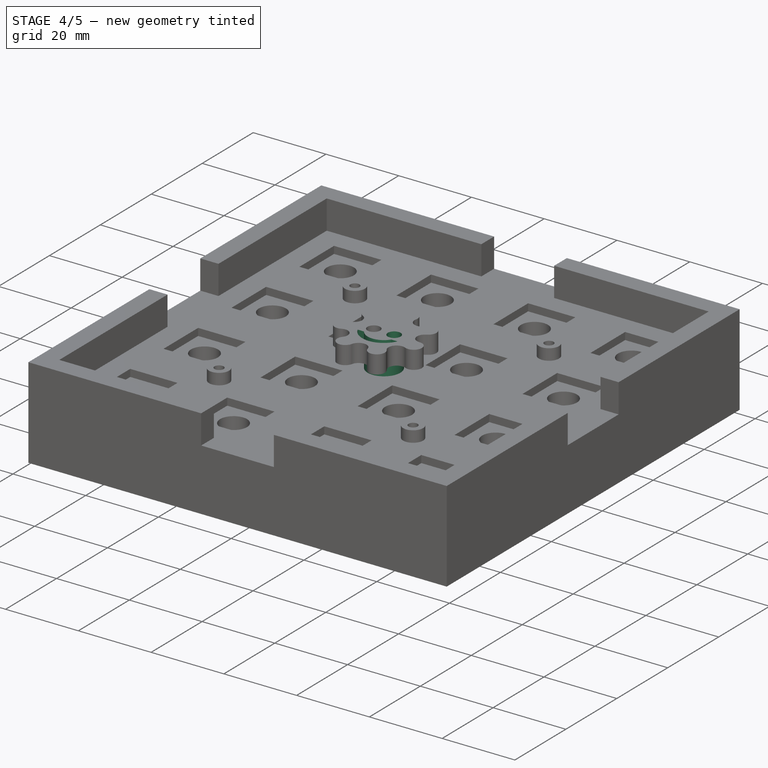
[diagram: stage 4 of 5 — iso view after this stage's code; geometry added in this stage tinted green]
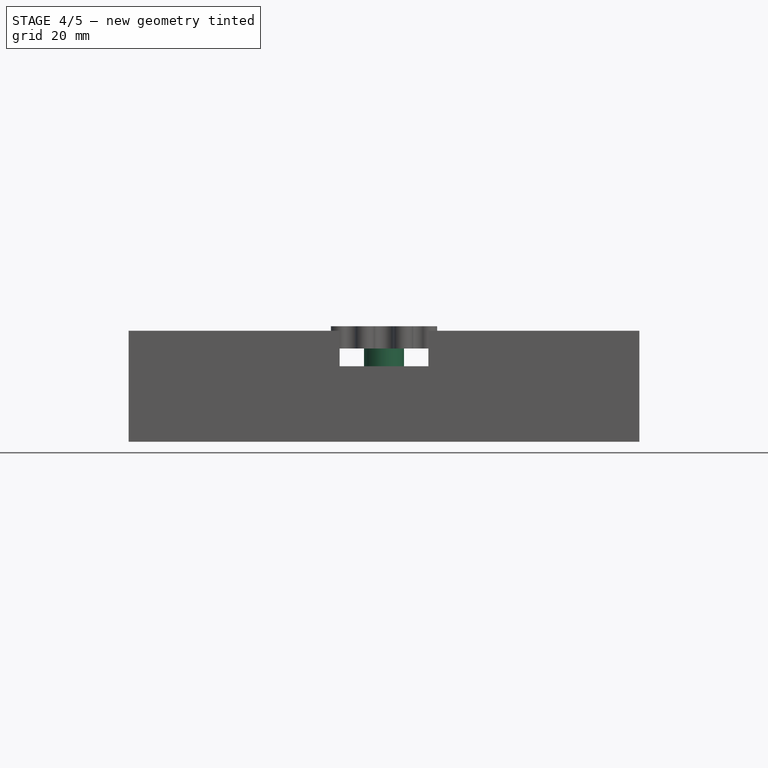
[diagram: stage 4 of 5 — front view after this stage's code; geometry added in this stage tinted green]
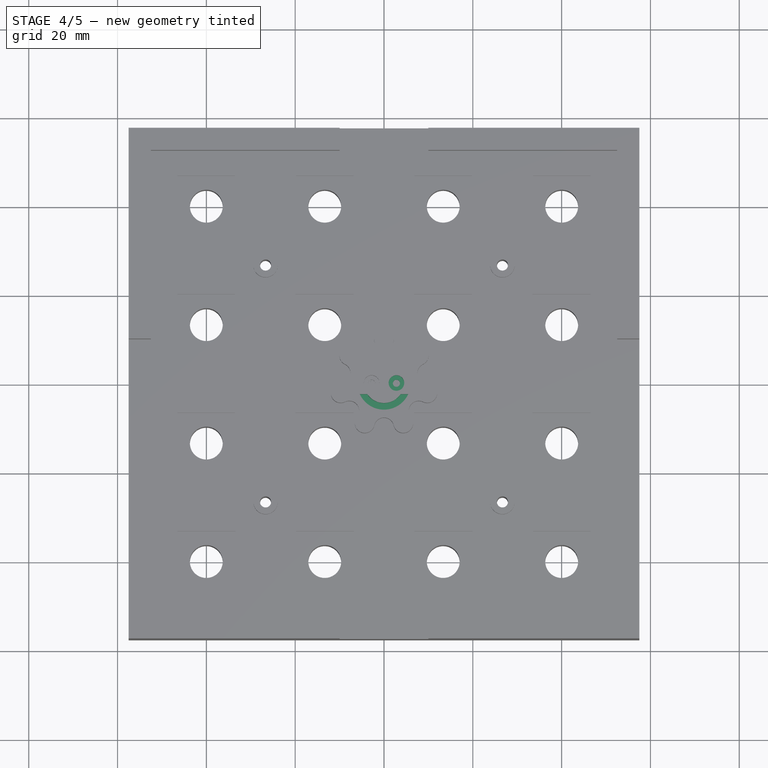
[diagram: stage 4 of 5 — top view after this stage's code; geometry added in this stage tinted green]
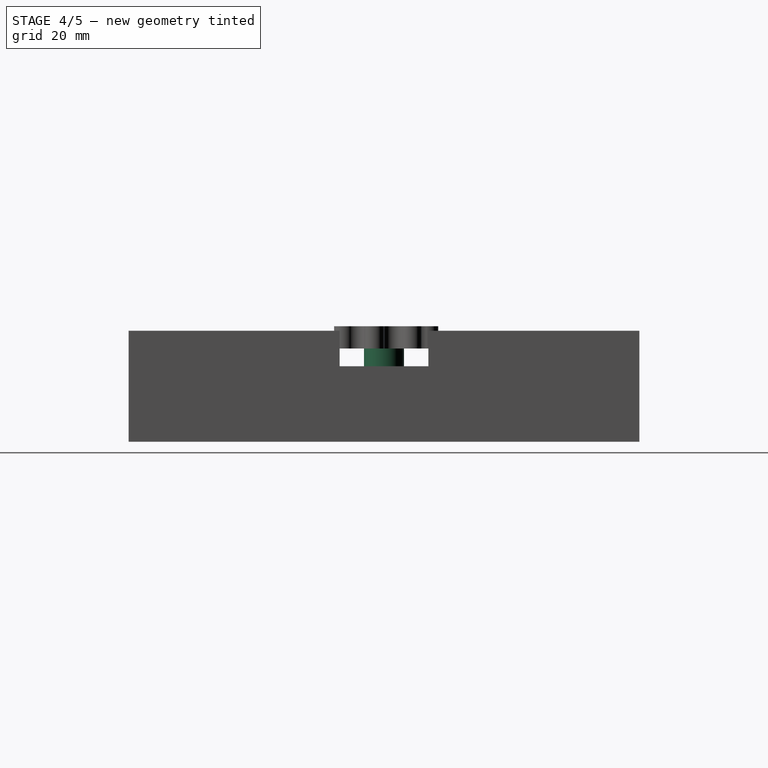
[diagram: stage 4 of 5 — right view after this stage's code; geometry added in this stage tinted green]
FEATURE [PartDesign::Mirrored] Mirrored004
  BaseFeature = -> Pocket007
  MirrorPlane = -> Sketch012 [V_Axis]
  Originals = -> [Pocket006,Pocket007]
  Placement = pos=(0,0,6) rot=(0,0,1;0rad)
FEATURE [Sketcher::SketchObject] Sketch006
  FullyConstrained = true
  MapMode = 5
  Support = -> [XY_Plane001]
  sketch-geometry (1):
    g0: Circle CenterX=0 CenterY=0 CenterZ=0 NormalX=0 NormalY=0 NormalZ=1 AngleXU=0 Radius=4.5
  constraints (2):
    c: Coincident(g0,g-1)
    c: Diameter(g0) = 9
FEATURE [PartDesign::Pad] Pad002
  Direction = (0,0,1)
  Length = 6
  Length2 = 1
  Profile = -> Sketch006
  ReferenceAxis = -> Sketch006 [N_Axis]
  Type = 4
FEATURE [Sketcher::SketchObject] Sketch007
  FullyConstrained = true
  MapMode = 5
  Support = -> [XY_Plane001]
  sketch-geometry (1):
    g0: Circle CenterX=0 CenterY=0 CenterZ=0 NormalX=0 NormalY=0 NormalZ=1 AngleXU=0 Radius=3
  constraints (2):
    c: Coincident(g0,g-1)
    c: Diameter(g0) = 6
FEATURE [Sketcher::SketchObject] Sketch008
  FullyConstrained = true
  MapMode = 5
  Support = -> [XY_Plane001]
  sketch-geometry (1):
    g0: Circle CenterX=0 CenterY=0 CenterZ=0 NormalX=0 NormalY=0 NormalZ=1 AngleXU=0 Radius=0.8
  constraints (2):
    c: Coincident(g0,g-1)
    c: Diameter(g0) = 1.6
FEATURE [Sketcher::SketchObject] Sketch009
  FullyConstrained = true
  MapMode = 5
  Support = -> [XY_Plane001]
  sketch-geometry (5):
    g0: Circle CenterX=-3.1 CenterY=0 CenterZ=0 NormalX=0 NormalY=0 NormalZ=1 AngleXU=0 Radius=0.8
    g1: ArcOfCircle CenterX=-3.1 CenterY=0 CenterZ=0 NormalX=0 NormalY=0 NormalZ=1 AngleXU=0 Radius=1.5 StartAngle=4.71239 EndAngle=7.85398
    g2: ArcOfCircle CenterX=0 CenterY=0 CenterZ=0 NormalX=0 NormalY=0 NormalZ=1 AngleXU=0 Radius=4 StartAngle=2.7572 EndAngle=3.52599
    g3: LineSegment StartX=-3.1 StartY=1.5 StartZ=0 EndX=-3.7081 EndY=1.5 EndZ=0
    g4: LineSegment StartX=-3.1 StartY=-1.5 StartZ=0 EndX=-3.7081 EndY=-1.5 EndZ=0
  constraints (13):
    c: PointOnObject(g0,g-1)
    c: Coincident(g1,g0)
    c: Diameter(g0) = 1.6
    c: Coincident(g2,g-1)
    c: Diameter(g2) = 8
    c: Horizontal(g3)
    c: Horizontal(g4)
    c: Diameter(g1) = 3
    c: Tangent(g1,g4) = 1.5708
    c: Tangent(g1,g3) = -1.5708
    c: Coincident(g2,g4)
    c: Coincident(g2,g3)
    c: DistanceX(g0,g2) = 3.1
FEATURE [Sketcher::SketchObject] Sketch010
  FullyConstrained = true
  MapMode = 5
  Support = -> [XY_Plane001]
  sketch-geometry (1):
    g0: Circle CenterX=-2.8 CenterY=0 CenterZ=0 NormalX=0 NormalY=0 NormalZ=1 AngleXU=0 Radius=0.8
  constraints (3):
    c: PointOnObject(g0,g-1)
    c: DistanceX(g0,g-1) = 2.8
    c: Diameter(g0) = 1.6
FEATURE [PartDesign::Pocket] Pocket008
  BaseFeature = -> Pad002
  Direction = (0,0,-1)
  Length = 6
  Length2 = 5
  Profile = -> Sketch007
  ReferenceAxis = -> Sketch007 [N_Axis]
  Reversed = true
  Type = 0
FEATURE [PartDesign::Body] Body001
  Group = -> [Sketch006,Pad002,Pocket008,Sketch007,Sketch008,Hole,Pad005,Sketch009,Sketch010,Pocket005,Mirrored005,Chamfer]
  Origin = -> Origin001
  Tip = -> Chamfer
FEATURE [Sketcher::SketchObject] Sketch014
  FullyConstrained = true
  MapMode = 5
  Placement = pos=(0,0,8) rot=(0,0,1;0rad)
  Support = -> [DatumPlane002]
  sketch-geometry (4):
    g0: ArcOfCircle CenterX=0 CenterY=0 CenterZ=0 NormalX=0 NormalY=0 NormalZ=1 AngleXU=0 Radius=6 StartAngle=3.57137 EndAngle=5.85341
    g1: ArcOfCircle CenterX=0 CenterY=0 CenterZ=0 NormalX=0 NormalY=0 NormalZ=1 AngleXU=0 Radius=4.5 StartAngle=3.73062 EndAngle=5.69415
    g2: LineSegment StartX=-5.45436 StartY=-2.5 StartZ=0 EndX=-3.74166 EndY=-2.5 EndZ=0
    g3: LineSegment StartX=3.74166 StartY=-2.5 StartZ=0 EndX=5.45436 EndY=-2.5 EndZ=0
  constraints (12):
    c: Coincident(g0,g-1)
    c: Coincident(g1,g0)
    c: Horizontal(g2)
    c: Coincident(g2,g1)
    c: Coincident(g3,g1)
    c: Coincident(g0,g3)
    c: Coincident(g0,g2)
    c: Diameter(g0) = 12
    c: Diameter(g1) = 9
    c: Horizontal(g3)
    c: Horizontal(g1,g1)
    c: DistanceY(g1,g0) = 2.5
FEATURE [PartDesign::Pocket] Pocket009
  BaseFeature = -> Mirrored004
  Direction = (0,0,-1)
  Length = 5
  Length2 = 5
  Placement = pos=(0,0,6) rot=(0,0,1;0rad)
  Profile = -> Sketch014
  ReferenceAxis = -> Sketch014 [N_Axis]
  Reversed = true
  Type = 0
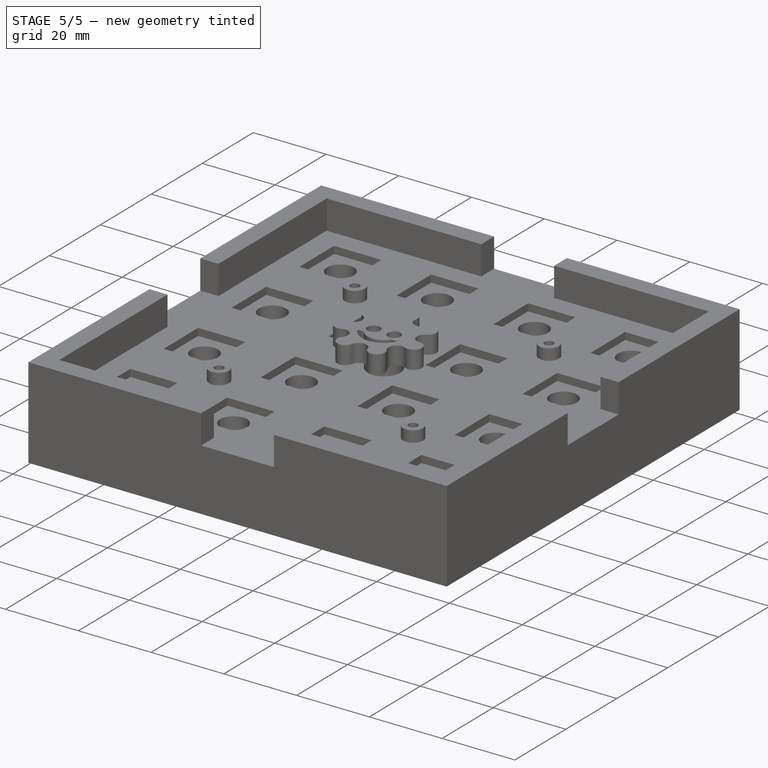
[diagram: stage 5 of 5 — iso view after this stage's code; geometry added in this stage tinted green]
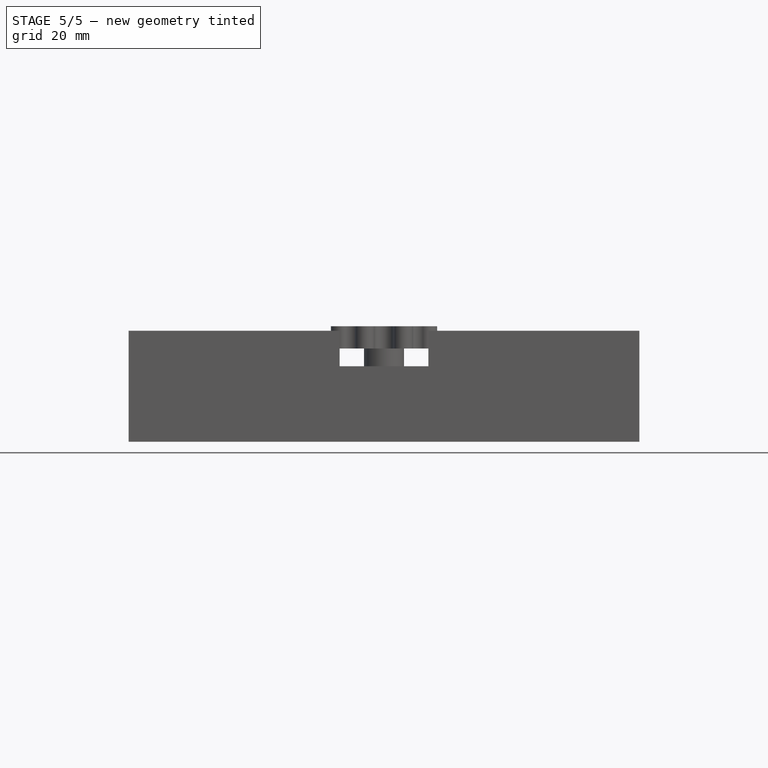
[diagram: stage 5 of 5 — front view after this stage's code; geometry added in this stage tinted green]
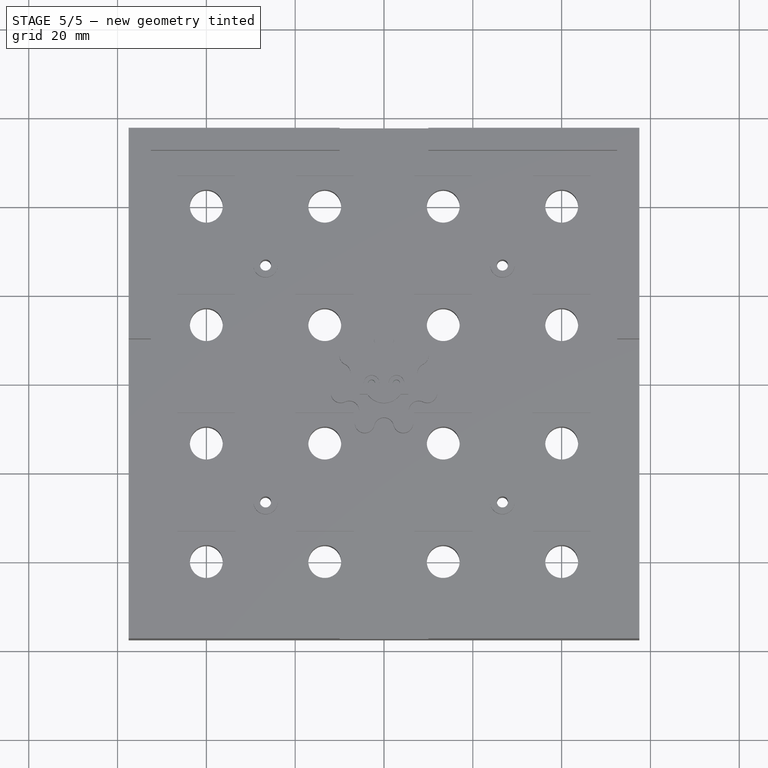
[diagram: stage 5 of 5 — top view after this stage's code; geometry added in this stage tinted green]
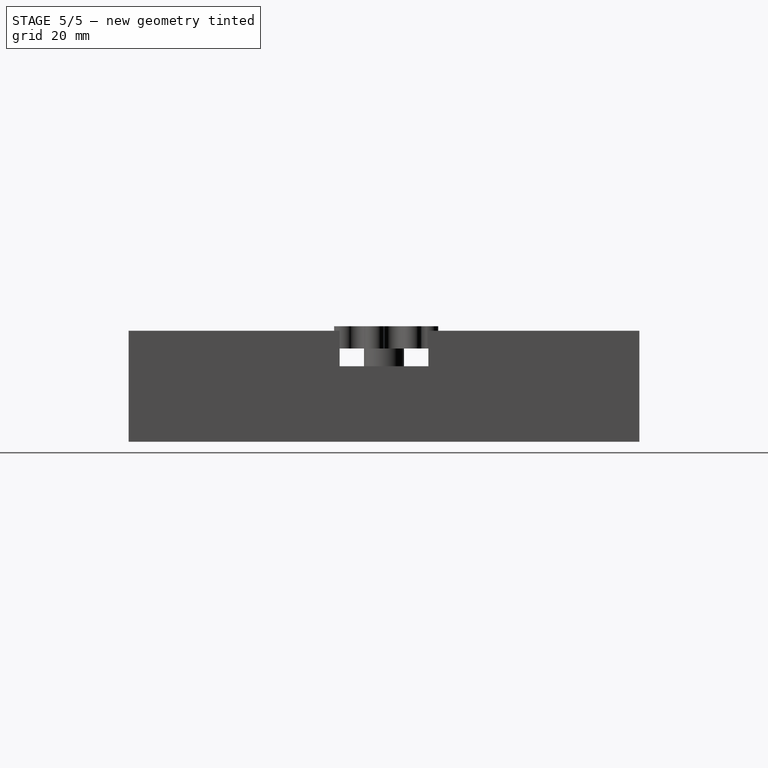
[diagram: stage 5 of 5 — right view after this stage's code; geometry added in this stage tinted green]
FEATURE [PartDesign::Hole] Hole
  BaseFeature = -> Pocket008
  CustomThreadClearance = 0
  Depth = 25
  DepthType = 0
  Diameter = 1.6
  DrillForDepth = false
  DrillPoint = 1
  DrillPointAngle = 118
  HoleCutCountersinkAngle = 90
  HoleCutCustomValues = false
  HoleCutDepth = 0
  HoleCutDiameter = 3
  HoleCutType = 0
  ModelThread = false
  Profile = -> Sketch008
  Tapered = false
  TaperedAngle = 90
  ThreadClass = 0
  ThreadDepth = 25
  ThreadDepthType = 0
  ThreadDirection = 0
  ThreadFit = 0
  ThreadSize = 0
  ThreadType = 0
  Threaded = false
  UseCustomThreadClearance = false
FEATURE [PartDesign::Pad] Pad005
  BaseFeature = -> Hole
  Direction = (0,0,1)
  Length = 6
  Length2 = 10
  Profile = -> Sketch009
  ReferenceAxis = -> Sketch009 [N_Axis]
  Type = 0
FEATURE [PartDesign::Pocket] Pocket005
  BaseFeature = -> Pad005
  Direction = (0,0,-1)
  Length = 7
  Length2 = 5
  Profile = -> Sketch010
  ReferenceAxis = -> Sketch010 [N_Axis]
  Refine = true
  Reversed = true
  Type = 0
FEATURE [PartDesign::Mirrored] Mirrored005
  BaseFeature = -> Pocket005
  MirrorPlane = -> Sketch009 [V_Axis]
  Originals = -> [Pad005,Pocket005]
  Refine = true
FEATURE [PartDesign::Chamfer] Chamfer
  Angle = 45
  Base = -> Mirrored005 [Edge14]
  BaseFeature = -> Mirrored005
  ChamferType = 0
  FlipDirection = false
  Size = 1.5
  Size2 = 1
  SupportTransform = false
  UseAllEdges = false
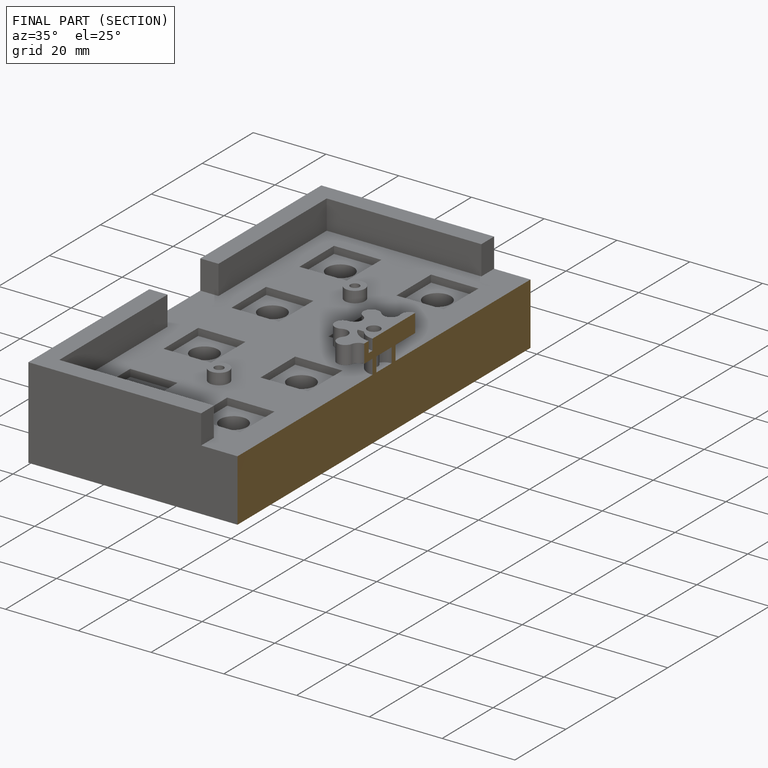
[diagram: finished part — half-section view (interior)]
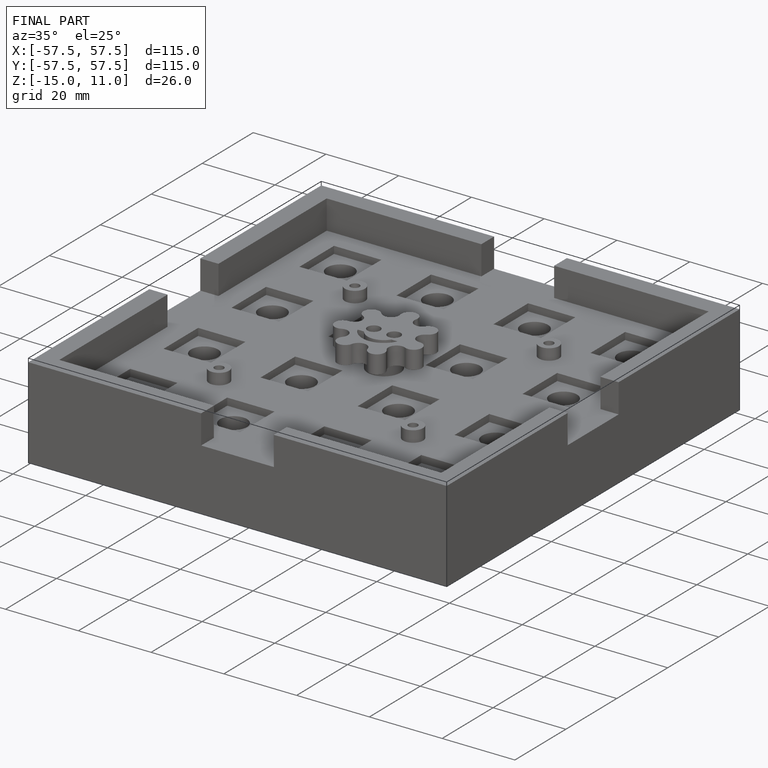
[diagram: finished part — iso view with bounding-box wireframe]
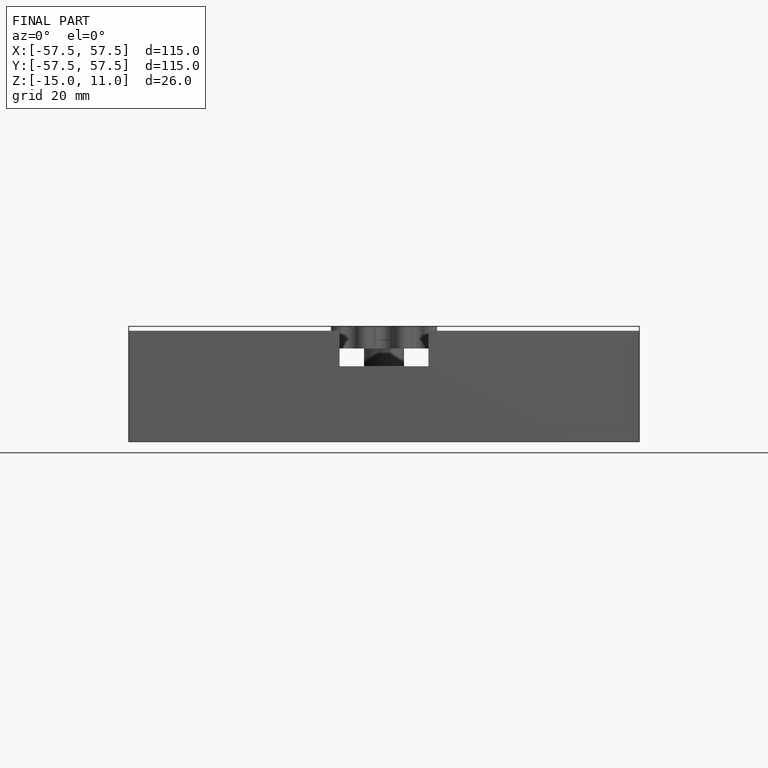
[diagram: finished part — front view with bounding-box wireframe]
